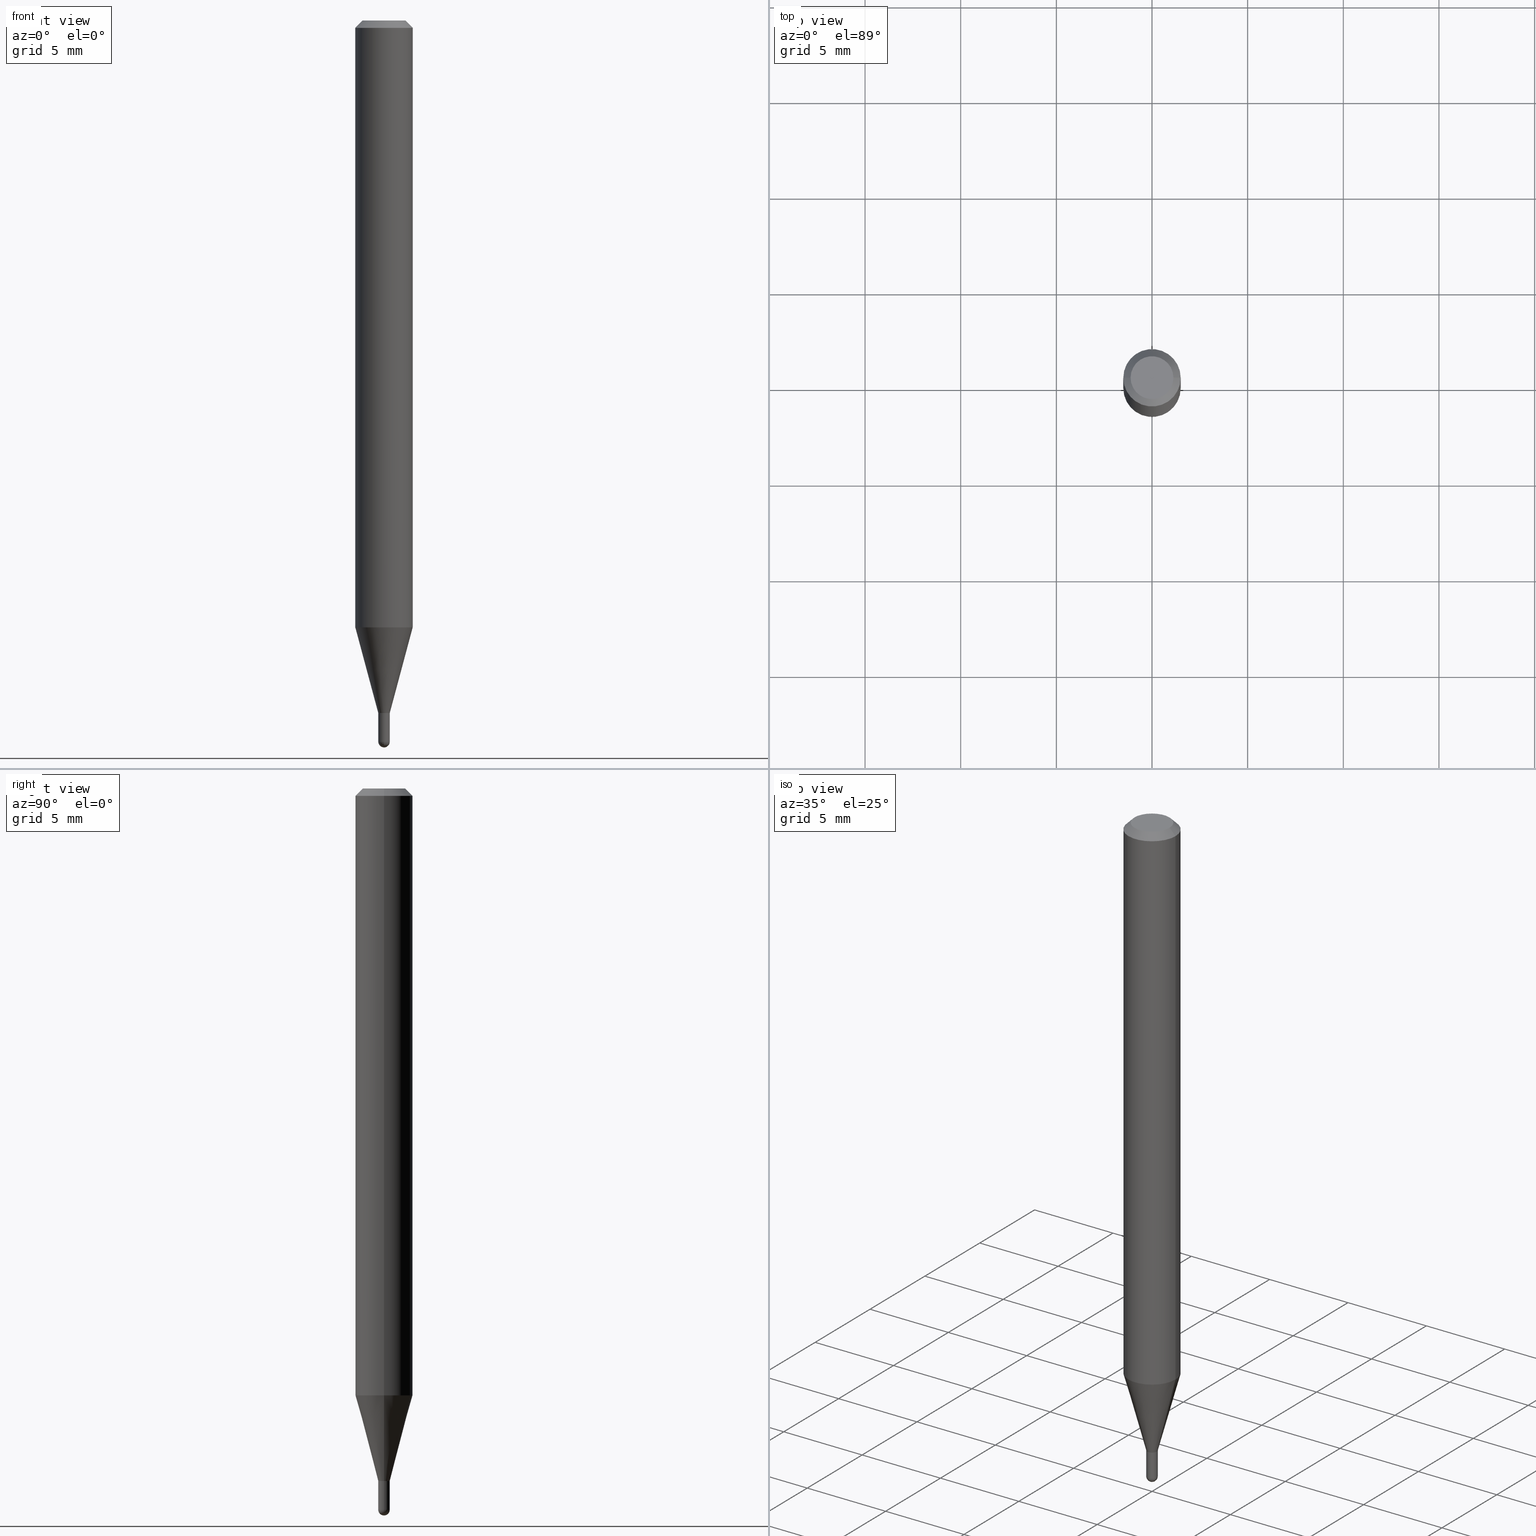
[diagram: canonical four-view strip — front | top / right | iso, engineering-drawing reading convention]
A machine part, canonical four-view strip (front | top / right | iso — engineering-drawing reading convention). The complete STEP part file that produces these views, byte-faithful:
ISO-10303-21;
HEADER;
FILE_DESCRIPTION (( 'STEP AP203' ),
    '1' );
FILE_NAME ('05035.STEP',
    '2024-03-08T21:02:24',
    ( '' ),
    ( '' ),
    'SwSTEP 2.0',
    'SolidWorks 2023',
    '' );
FILE_SCHEMA (( 'CONFIG_CONTROL_DESIGN' ));
ENDSEC;

DATA;
#1 = EDGE_CURVE ( 'NONE', #434, #441, #489, .T. ) ;
#2 = AXIS2_PLACEMENT_3D ( 'NONE', #339, #180, #499 ) ;
#3 = VERTEX_POINT ( 'NONE', #282 ) ;
#4 = CARTESIAN_POINT ( 'NONE',  ( 3.485282142575056435E-29, -4.976059204119250988E-15, -1.425199999999999800 ) ) ;
#5 = LOCAL_TIME ( 16, 2, 24.00000000000000000, #429 ) ;
#6 =( LENGTH_UNIT ( ) NAMED_UNIT ( * ) SI_UNIT ( $, .METRE. ) );
#7 = FACE_OUTER_BOUND ( 'NONE', #471, .T. ) ;
#8 = VERTEX_POINT ( 'NONE', #362 ) ;
#9 = CARTESIAN_POINT ( 'NONE',  ( 0.01180000000000000146, -5.058458163715949112E-15, -1.425199999999999800 ) ) ;
#10 = ORIENTED_EDGE ( 'NONE', *, *, #438, .T. ) ;
#11 = DIRECTION ( 'NONE',  ( -2.445468806185136597E-29, 3.491481338843145583E-15, 1.000000000000000000 ) ) ;
#12 = CARTESIAN_POINT ( 'NONE',  ( -0.04404999999999999888, 3.337856159934031674E-16, -8.050215734195352474E-17 ) ) ;
#13 = EDGE_CURVE ( 'NONE', #349, #150, #15, .T. ) ;
#14 = ORIENTED_EDGE ( 'NONE', *, *, #56, .T. ) ;
#15 = CIRCLE ( 'NONE', #141, 0.01180000000000000146 ) ;
#16 = CIRCLE ( 'NONE', #128, 0.01130000000000000102 ) ;
#17 = PERSON_AND_ORGANIZATION_ROLE ( 'creator' ) ;
#18 = CARTESIAN_POINT ( 'NONE',  ( 0.01180000000000000319, -8.239895959669796365E-17, 5.753888595439205651E-31 ) ) ;
#19 = DATE_AND_TIME ( #247, #458 ) ;
#20 = DIRECTION ( 'NONE',  ( 1.000000000000000000, -6.982962677686258033E-15, 0.000000000000000000 ) ) ;
#21 = CARTESIAN_POINT ( 'NONE',  ( 3.628800252799366100E-29, -5.183850834467873739E-15, -1.484299999999999731 ) ) ;
#22 = EDGE_LOOP ( 'NONE', ( #428, #190, #314, #418 ) ) ;
#23 = EDGE_LOOP ( 'NONE', ( #167, #341, #320, #401 ) ) ;
#24 = PERSON_AND_ORGANIZATION_ROLE ( 'creator' ) ;
#25 = CC_DESIGN_DATE_AND_TIME_ASSIGNMENT ( #19, #171, ( #155 ) ) ;
#26 = CARTESIAN_POINT ( 'NONE',  ( -0.01180000000000000146, -4.995388434862373344E-15, -1.425199999999999800 ) ) ;
#27 = EDGE_LOOP ( 'NONE', ( #255, #212, #355, #405, #38 ) ) ;
#28 = MECHANICAL_CONTEXT ( 'NONE', #43, 'mechanical' ) ;
#29 = VECTOR ( 'NONE', #423, 39.37007874015748143 ) ;
#30 = DIRECTION ( 'NONE',  ( -2.445468806185136877E-29, 3.491481338843145188E-15, 1.000000000000000000 ) ) ;
#31 = ORIENTED_EDGE ( 'NONE', *, *, #44, .F. ) ;
#32 = APPROVAL_ROLE ( '' ) ;
#33 = DIRECTION ( 'NONE',  ( 7.105427357600999492E-15, 1.000000000000000000, 0.000000000000000000 ) ) ;
#34 = ORIENTED_EDGE ( 'NONE', *, *, #322, .F. ) ;
#35 = ORIENTED_EDGE ( 'NONE', *, *, #79, .T. ) ;
#36 = EDGE_CURVE ( 'NONE', #104, #256, #119, .T. ) ;
#37 = DIRECTION ( 'NONE',  ( -2.445468806185136597E-29, 3.491481338843145583E-15, 1.000000000000000000 ) ) ;
#38 = ORIENTED_EDGE ( 'NONE', *, *, #13, .F. ) ;
#39 = AXIS2_PLACEMENT_3D ( 'NONE', #49, #286, #196 ) ;
#40 = APPROVAL_PERSON_ORGANIZATION ( #213, #404, #204 ) ;
#41 = CARTESIAN_POINT ( 'NONE',  ( 3.485282142575056995E-29, -4.976059204119251777E-15, -1.425200000000000244 ) ) ;
#42 = CARTESIAN_POINT ( 'NONE',  ( 8.239895959673279679E-17, 0.01179999999999502280, -1.425199999999999800 ) ) ;
#43 = APPLICATION_CONTEXT ( 'configuration controlled 3d designs of mechanical parts and assemblies' ) ;
#44 = EDGE_CURVE ( 'NONE', #150, #349, #200, .T. ) ;
#45 = DIRECTION ( 'NONE',  ( 2.445468806185136597E-29, -3.491481338843145583E-15, -1.000000000000000000 ) ) ;
#46 = CIRCLE ( 'NONE', #273, 0.01180000000000019922 ) ;
#47 = AXIS2_PLACEMENT_3D ( 'NONE', #113, #37, #272 ) ;
#48 = DIRECTION ( 'NONE',  ( -2.445468806185136597E-29, 3.491481338843145583E-15, 1.000000000000000000 ) ) ;
#49 = CARTESIAN_POINT ( 'NONE',  ( 3.668203209277724356E-31, -5.237222008264746748E-17, -0.01500000000000008098 ) ) ;
#50 = EDGE_CURVE ( 'NONE', #203, #72, #468, .T. ) ;
#51 = SPHERICAL_SURFACE ( 'NONE', #251, 0.01180000000000006738 ) ;
#52 = CYLINDRICAL_SURFACE ( 'NONE', #360, 0.01180000000000000319 ) ;
#53 = VECTOR ( 'NONE', #134, 39.37007874015748143 ) ;
#54 = CC_DESIGN_APPROVAL ( #231, ( #82 ) ) ;
#55 = CARTESIAN_POINT ( 'NONE',  ( 1.968655146103496235E-45, -2.810717800960375713E-31, -8.050215734195126909E-17 ) ) ;
#56 = EDGE_CURVE ( 'NONE', #145, #268, #500, .T. ) ;
#57 = APPLICATION_PROTOCOL_DEFINITION ( 'international standard', 'config_control_design', 1994, #460 ) ;
#58 = DIRECTION ( 'NONE',  ( -2.445468806185136597E-29, 3.491481338843145583E-15, 1.000000000000000000 ) ) ;
#59 = CARTESIAN_POINT ( 'NONE',  ( 0.01179999999999965278, -5.056712423046525241E-15, -1.424700000000000077 ) ) ;
#60 = CIRCLE ( 'NONE', #331, 0.01180000000000000319 ) ;
#61 =( GEOMETRIC_REPRESENTATION_CONTEXT ( 3 ) GLOBAL_UNCERTAINTY_ASSIGNED_CONTEXT ( ( #242 ) ) GLOBAL_UNIT_ASSIGNED_CONTEXT ( ( #110, #461, #342 ) ) REPRESENTATION_CONTEXT ( 'NONE', 'WORKASPACE' ) );
#62 = CIRCLE ( 'NONE', #288, 0.01180000000000006738 ) ;
#63 = DATE_TIME_ROLE ( 'creation_date' ) ;
#64 = DIRECTION ( 'NONE',  ( 1.000000000000000000, -6.982962677686265922E-15, 4.876176775795935793E-29 ) ) ;
#65 = FACE_OUTER_BOUND ( 'NONE', #395, .T. ) ;
#66 = EDGE_CURVE ( 'NONE', #3, #346, #250, .T. ) ;
#67 = CYLINDRICAL_SURFACE ( 'NONE', #2, 0.01179999999999992687 ) ;
#68 = ORIENTED_EDGE ( 'NONE', *, *, #313, .F. ) ;
#69 = PERSON_AND_ORGANIZATION ( #285, #142 ) ;
#70 = LINE ( 'NONE', #147, #220 ) ;
#71 = ORIENTED_EDGE ( 'NONE', *, *, #50, .F. ) ;
#72 = VERTEX_POINT ( 'NONE', #12 ) ;
#73 = LENGTH_MEASURE_WITH_UNIT ( LENGTH_MEASURE( 0.02539999999999999897 ), #6 );
#74 = DIRECTION ( 'NONE',  ( 1.000000000000000000, -6.982962677686265922E-15, 4.876176775795935793E-29 ) ) ;
#75 = VECTOR ( 'NONE', #269, 39.37007874015748143 ) ;
#76 = DIRECTION ( 'NONE',  ( -2.445468806185136597E-29, 3.491481338843145583E-15, 1.000000000000000000 ) ) ;
#77 = VERTEX_POINT ( 'NONE', #125 ) ;
#78 = ORIENTED_EDGE ( 'NONE', *, *, #36, .F. ) ;
#79 = EDGE_CURVE ( 'NONE', #8, #349, #168, .T. ) ;
#80 = ORIENTED_EDGE ( 'NONE', *, *, #438, .F. ) ;
#81 = DIRECTION ( 'NONE',  ( -2.445468806185136597E-29, 3.491481338843145583E-15, 1.000000000000000000 ) ) ;
#82 = PRODUCT_DEFINITION_FORMATION_WITH_SPECIFIED_SOURCE ( 'ANY', '', #318, .NOT_KNOWN. ) ;
#83 = ADVANCED_FACE ( 'NONE', ( #7 ), #292, .T. ) ;
#84 = ORIENTED_EDGE ( 'NONE', *, *, #50, .T. ) ;
#85 = DIRECTION ( 'NONE',  ( 1.000000000000000000, -6.982962677686265133E-15, 4.883557194083112340E-29 ) ) ;
#86 = CARTESIAN_POINT ( 'NONE',  ( 3.485282142575056995E-29, -4.976059204119251777E-15, -1.425200000000000244 ) ) ;
#87 = AXIS2_PLACEMENT_3D ( 'NONE', #300, #416, #210 ) ;
#88 = AXIS2_PLACEMENT_3D ( 'NONE', #475, #254, #211 ) ;
#89 = PLANE ( 'NONE',  #209 ) ;
#90 = EDGE_CURVE ( 'NONE', #185, #77, #207, .T. ) ;
#91 = DIRECTION ( 'NONE',  ( 1.000000000000000000, -6.982962677686297476E-15, 0.000000000000000000 ) ) ;
#92 = CARTESIAN_POINT ( 'NONE',  ( 0.01180000000000000319, -5.161631437278763522E-15, -1.484299999999999731 ) ) ;
#93 = DIRECTION ( 'NONE',  ( -2.445468806185136597E-29, 3.491481338843145583E-15, 1.000000000000000000 ) ) ;
#94 = CONICAL_SURFACE ( 'NONE', #392, 0.01130000000000000102, 0.7853981633969275844 ) ;
#95 = FACE_OUTER_BOUND ( 'NONE', #215, .T. ) ;
#96 = ADVANCED_FACE ( 'NONE', ( #325 ), #462, .T. ) ;
#97 = DIRECTION ( 'NONE',  ( -2.445468806185136597E-29, 3.491481338843145583E-15, 1.000000000000000000 ) ) ;
#98 = DIRECTION ( 'NONE',  ( -2.445468806185136877E-29, 3.491481338843145188E-15, 1.000000000000000000 ) ) ;
#99 = CALENDAR_DATE ( 2024, 8, 3 ) ;
#100 = PLANE ( 'NONE',  #177 ) ;
#101 = DIRECTION ( 'NONE',  ( -2.445468806185136597E-29, 3.491481338843145583E-15, 1.000000000000000000 ) ) ;
#102 = CALENDAR_DATE ( 2024, 8, 3 ) ;
#103 = DIRECTION ( 'NONE',  ( -2.445468806185136597E-29, 3.491481338843145583E-15, 1.000000000000000000 ) ) ;
#104 = VERTEX_POINT ( 'NONE', #378 ) ;
#105 = PERSON_AND_ORGANIZATION_ROLE ( 'design_owner' ) ;
#106 = DIRECTION ( 'NONE',  ( 1.000000000000000000, -6.982962677686264344E-15, 0.000000000000000000 ) ) ;
#107 = ORIENTED_EDGE ( 'NONE', *, *, #153, .T. ) ;
#108 = CARTESIAN_POINT ( 'NONE',  ( 0.000000000000000000, 0.000000000000000000, 0.000000000000000000 ) ) ;
#109 = EDGE_LOOP ( 'NONE', ( #71, #165, #505, #344 ) ) ;
#110 =( CONVERSION_BASED_UNIT ( 'INCH', #73 ) LENGTH_UNIT ( ) NAMED_UNIT ( #400 ) );
#111 = SPHERICAL_SURFACE ( 'NONE', #88, 0.01180000000000006738 ) ;
#112 = ORIENTED_EDGE ( 'NONE', *, *, #121, .F. ) ;
#113 = CARTESIAN_POINT ( 'NONE',  ( 3.484059408171963633E-29, -4.974313463449829484E-15, -1.424700000000000077 ) ) ;
#114 = CARTESIAN_POINT ( 'NONE',  ( 3.629809349020597767E-29, -5.182405751244879809E-15, -1.484299999999999731 ) ) ;
#115 = ADVANCED_FACE ( 'NONE', ( #487 ), #100, .F. ) ;
#116 = LINE ( 'NONE', #224, #451 ) ;
#117 = DIRECTION ( 'NONE',  ( -1.000000000000000000, 6.982962677686265922E-15, -4.876176775795935793E-29 ) ) ;
#118 = CC_DESIGN_PERSON_AND_ORGANIZATION_ASSIGNMENT ( #69, #169, ( #82 ) ) ;
#119 = CIRCLE ( 'NONE', #187, 0.01180000000000006738 ) ;
#120 = EDGE_LOOP ( 'NONE', ( #186, #509, #184, #402 ) ) ;
#121 = EDGE_CURVE ( 'NONE', #441, #434, #46, .T. ) ;
#122 = AXIS2_PLACEMENT_3D ( 'NONE', #108, #226, #261 ) ;
#123 = DIRECTION ( 'NONE',  ( -1.000000000000000000, 6.982962677686265922E-15, -4.876176775795935793E-29 ) ) ;
#124 = LINE ( 'NONE', #455, #354 ) ;
#125 = CARTESIAN_POINT ( 'NONE',  ( -0.01179999999999965278, -4.890469420630140585E-15, -1.424700000000000077 ) ) ;
#126 = ADVANCED_FACE ( 'NONE', ( #253 ), #52, .T. ) ;
#127 = CIRCLE ( 'NONE', #432, 0.05904999999999999832 ) ;
#128 = AXIS2_PLACEMENT_3D ( 'NONE', #435, #11, #327 ) ;
#129 = CARTESIAN_POINT ( 'NONE',  ( 3.485282142575056435E-29, -4.976059204119250988E-15, -1.425199999999999800 ) ) ;
#130 = APPROVAL_STATUS ( 'not_yet_approved' ) ;
#131 = CYLINDRICAL_SURFACE ( 'NONE', #422, 0.01179999999999992687 ) ;
#132 = ORIENTED_EDGE ( 'NONE', *, *, #66, .T. ) ;
#133 = DIRECTION ( 'NONE',  ( 1.000000000000000000, 0.000000000000000000, 0.000000000000000000 ) ) ;
#134 = DIRECTION ( 'NONE',  ( -2.445468806185136877E-29, 3.491481338843145188E-15, 1.000000000000000000 ) ) ;
#135 = CARTESIAN_POINT ( 'NONE',  ( 0.000000000000000000, 0.000000000000000000, 0.000000000000000000 ) ) ;
#136 = CALENDAR_DATE ( 2024, 8, 3 ) ;
#137 = CARTESIAN_POINT ( 'NONE',  ( 0.000000000000000000, 0.000000000000000000, 0.000000000000000000 ) ) ;
#138 = EDGE_CURVE ( 'NONE', #8, #256, #510, .T. ) ;
#139 = CARTESIAN_POINT ( 'NONE',  ( 3.485282142575056435E-29, -4.976059204119250988E-15, -1.425199999999999800 ) ) ;
#140 = VERTEX_POINT ( 'NONE', #324 ) ;
#141 = AXIS2_PLACEMENT_3D ( 'NONE', #4, #188, #162 ) ;
#142 = ORGANIZATION ( 'UNSPECIFIED', 'UNSPECIFIED', '' ) ;
#143 = DATE_AND_TIME ( #426, #274 ) ;
#144 = CARTESIAN_POINT ( 'NONE',  ( 0.05904999999999999832, -4.647161662000215063E-16, -0.01500000000000008098 ) ) ;
#145 = VERTEX_POINT ( 'NONE', #194 ) ;
#146 = SECURITY_CLASSIFICATION_LEVEL ( 'unclassified' ) ;
#147 = CARTESIAN_POINT ( 'NONE',  ( -0.05904999999999999832, 4.195754854663391478E-16, -2.904631170795521892E-30 ) ) ;
#148 = ORIENTED_EDGE ( 'NONE', *, *, #313, .T. ) ;
#149 = CC_DESIGN_PERSON_AND_ORGANIZATION_ASSIGNMENT ( #183, #17, ( #82 ) ) ;
#150 = VERTEX_POINT ( 'NONE', #9 ) ;
#151 = AXIS2_PLACEMENT_3D ( 'NONE', #414, #58, #494 ) ;
#152 = AXIS2_PLACEMENT_3D ( 'NONE', #277, #93, #449 ) ;
#153 = EDGE_CURVE ( 'NONE', #140, #8, #60, .T. ) ;
#154 = CARTESIAN_POINT ( 'NONE',  ( 0.01179999999999992687, -8.239895959669743364E-17, 5.753888595439167991E-31 ) ) ;
#155 = SECURITY_CLASSIFICATION ( '', '', #146 ) ;
#156 = EDGE_LOOP ( 'NONE', ( #10, #84 ) ) ;
#157 = FACE_OUTER_BOUND ( 'NONE', #375, .T. ) ;
#158 = ADVANCED_FACE ( 'NONE', ( #236 ), #419, .T. ) ;
#159 = CARTESIAN_POINT ( 'NONE',  ( -0.01180000000000019922, -4.416506576626797122E-15, -1.425199999999999800 ) ) ;
#160 = FACE_OUTER_BOUND ( 'NONE', #275, .T. ) ;
#161 = CARTESIAN_POINT ( 'NONE',  ( 0.01180000000000019922, -5.058458163715949900E-15, -1.425199999999999800 ) ) ;
#162 = DIRECTION ( 'NONE',  ( 1.000000000000000000, -6.982962677686298265E-15, 0.000000000000000000 ) ) ;
#163 = CLOSED_SHELL ( 'NONE', ( #257, #492, #158, #448, #338, #276, #96, #430, #504, #115, #181, #245 ) ) ;
#164 = AXIS2_PLACEMENT_3D ( 'NONE', #218, #391, #495 ) ;
#165 = ORIENTED_EDGE ( 'NONE', *, *, #322, .T. ) ;
#166 = EDGE_CURVE ( 'NONE', #434, #3, #124, .T. ) ;
#167 = ORIENTED_EDGE ( 'NONE', *, *, #121, .T. ) ;
#168 = LINE ( 'NONE', #296, #53 ) ;
#169 = PERSON_AND_ORGANIZATION_ROLE ( 'design_supplier' ) ;
#170 = CARTESIAN_POINT ( 'NONE',  ( 0.04404999999999999888, -3.798447818264463530E-16, -8.050215734194887786E-17 ) ) ;
#171 = DATE_TIME_ROLE ( 'classification_date' ) ;
#172 = CARTESIAN_POINT ( 'NONE',  ( 3.485282142575056435E-29, -4.976059204119250988E-15, -1.425199999999999800 ) ) ;
#173 = LINE ( 'NONE', #387, #233 ) ;
#174 = ORIENTED_EDGE ( 'NONE', *, *, #385, .T. ) ;
#175 = CARTESIAN_POINT ( 'NONE',  ( -0.01130000000000000102, -4.893118647804250998E-15, -1.425200000000000244 ) ) ;
#176 = VERTEX_POINT ( 'NONE', #305 ) ;
#177 = AXIS2_PLACEMENT_3D ( 'NONE', #248, #421, #382 ) ;
#178 = CIRCLE ( 'NONE', #240, 0.01130000000000000102 ) ;
#179 = APPROVAL_STATUS ( 'not_yet_approved' ) ;
#180 = DIRECTION ( 'NONE',  ( -2.445468806185136597E-29, 3.491481338843145583E-15, 1.000000000000000000 ) ) ;
#181 = ADVANCED_FACE ( 'NONE', ( #259 ), #94, .T. ) ;
#182 = ORIENTED_EDGE ( 'NONE', *, *, #478, .F. ) ;
#183 = PERSON_AND_ORGANIZATION ( #285, #142 ) ;
#184 = ORIENTED_EDGE ( 'NONE', *, *, #473, .T. ) ;
#185 = VERTEX_POINT ( 'NONE', #59 ) ;
#186 = ORIENTED_EDGE ( 'NONE', *, *, #1, .F. ) ;
#187 = AXIS2_PLACEMENT_3D ( 'NONE', #485, #334, #488 ) ;
#188 = DIRECTION ( 'NONE',  ( -2.445468806185136597E-29, 3.491481338843145583E-15, 1.000000000000000000 ) ) ;
#189 = ORIENTED_EDGE ( 'NONE', *, *, #138, .F. ) ;
#190 = ORIENTED_EDGE ( 'NONE', *, *, #412, .T. ) ;
#191 = DIRECTION ( 'NONE',  ( 1.000000000000000000, -6.982962677686264344E-15, 0.000000000000000000 ) ) ;
#192 = AXIS2_PLACEMENT_3D ( 'NONE', #436, #81, #229 ) ;
#193 = DIRECTION ( 'NONE',  ( -2.445468806185136597E-29, 3.491481338843145583E-15, 1.000000000000000000 ) ) ;
#194 = CARTESIAN_POINT ( 'NONE',  ( -0.05904999999999999832, -1.786797363285172040E-15, -0.01500000000000008098 ) ) ;
#195 = DIRECTION ( 'NONE',  ( -2.445468806185136597E-29, 3.491481338843145583E-15, 1.000000000000000000 ) ) ;
#196 = DIRECTION ( 'NONE',  ( -1.000000000000000000, 6.982962677686266711E-15, 0.000000000000000000 ) ) ;
#197 = EDGE_CURVE ( 'NONE', #447, #150, #206, .T. ) ;
#198 = LINE ( 'NONE', #453, #280 ) ;
#199 = CARTESIAN_POINT ( 'NONE',  ( 0.000000000000000000, 0.000000000000000000, 0.000000000000000000 ) ) ;
#200 = CIRCLE ( 'NONE', #151, 0.01180000000000000146 ) ;
#201 = DIRECTION ( 'NONE',  ( 1.000000000000000000, -6.982962677686297476E-15, 0.000000000000000000 ) ) ;
#202 = DIRECTION ( 'NONE',  ( 1.000000000000000000, -6.982962677686265922E-15, 4.888540261209747396E-29 ) ) ;
#203 = VERTEX_POINT ( 'NONE', #170 ) ;
#204 = APPROVAL_ROLE ( '' ) ;
#205 = CARTESIAN_POINT ( 'NONE',  ( 3.668203209277724356E-31, -5.237222008264746748E-17, -0.01500000000000008098 ) ) ;
#206 = LINE ( 'NONE', #18, #315 ) ;
#207 = CIRCLE ( 'NONE', #411, 0.01179999999999965278 ) ;
#208 = EDGE_CURVE ( 'NONE', #434, #77, #427, .T. ) ;
#209 = AXIS2_PLACEMENT_3D ( 'NONE', #367, #323, #123 ) ;
#210 = DIRECTION ( 'NONE',  ( 1.000000000000000000, -6.982962677686266711E-15, 4.876176775795936353E-29 ) ) ;
#211 = DIRECTION ( 'NONE',  ( -6.982962677686265133E-15, -1.000000000000000000, 0.000000000000000000 ) ) ;
#212 = ORIENTED_EDGE ( 'NONE', *, *, #138, .T. ) ;
#213 = PERSON_AND_ORGANIZATION ( #285, #142 ) ;
#214 = DIRECTION ( 'NONE',  ( 1.000000000000000000, -6.982962677686265133E-15, 0.000000000000000000 ) ) ;
#215 = EDGE_LOOP ( 'NONE', ( #456, #223, #340, #298 ) ) ;
#216 = COORDINATED_UNIVERSAL_TIME_OFFSET ( 5, 0, .BEHIND. ) ;
#217 = EDGE_CURVE ( 'NONE', #3, #145, #70, .T. ) ;
#218 = CARTESIAN_POINT ( 'NONE',  ( 3.668203209277724356E-31, -5.237222008264746748E-17, -0.01500000000000008098 ) ) ;
#219 = EDGE_LOOP ( 'NONE', ( #508, #132, #312, #443 ) ) ;
#220 = VECTOR ( 'NONE', #30, 39.37007874015748143 ) ;
#221 = APPROVAL_PERSON_ORGANIZATION ( #347, #454, #336 ) ;
#222 = CARTESIAN_POINT ( 'NONE',  ( 3.485282142575056995E-29, -4.976059204119251777E-15, -1.425200000000000244 ) ) ;
#223 = ORIENTED_EDGE ( 'NONE', *, *, #217, .T. ) ;
#224 = CARTESIAN_POINT ( 'NONE',  ( 0.01130000000000000102, -5.054966682377106893E-15, -1.425200000000000244 ) ) ;
#225 = APPROVAL_DATE_TIME ( #506, #454 ) ;
#226 = DIRECTION ( 'NONE',  ( -2.445468806185136597E-29, 3.491481338843145583E-15, 1.000000000000000000 ) ) ;
#227 = EDGE_CURVE ( 'NONE', #346, #3, #127, .T. ) ;
#228 = CC_DESIGN_APPROVAL ( #404, ( #328 ) ) ;
#229 = DIRECTION ( 'NONE',  ( 1.000000000000000000, -6.982962677686297476E-15, 0.000000000000000000 ) ) ;
#230 = LOCAL_TIME ( 16, 2, 24.00000000000000000, #497 ) ;
#231 = APPROVAL ( #377, 'UNSPECIFIED' ) ;
#232 = AXIS2_PLACEMENT_3D ( 'NONE', #129, #193, #191 ) ;
#233 = VECTOR ( 'NONE', #332, 39.37007874015748143 ) ;
#234 = ORIENTED_EDGE ( 'NONE', *, *, #66, .F. ) ;
#235 = EDGE_CURVE ( 'NONE', #268, #145, #403, .T. ) ;
#236 = FACE_OUTER_BOUND ( 'NONE', #109, .T. ) ;
#237 = EDGE_LOOP ( 'NONE', ( #263, #410 ) ) ;
#238 = DIRECTION ( 'NONE',  ( -2.445468806185136877E-29, 3.491481338843145188E-15, 1.000000000000000000 ) ) ;
#239 = EDGE_LOOP ( 'NONE', ( #496, #112, #174, #397 ) ) ;
#240 = AXIS2_PLACEMENT_3D ( 'NONE', #41, #373, #452 ) ;
#241 = DIRECTION ( 'NONE',  ( 1.000000000000000000, -6.982962677686266711E-15, 0.000000000000000000 ) ) ;
#242 = UNCERTAINTY_MEASURE_WITH_UNIT (LENGTH_MEASURE( 1.000000000000000082E-05 ), #110, 'distance_accuracy_value', 'NONE');
#243 = ORIENTED_EDGE ( 'NONE', *, *, #486, .T. ) ;
#244 = DIRECTION ( 'NONE',  ( -2.445468806185136597E-29, 3.491481338843145583E-15, 1.000000000000000000 ) ) ;
#245 = ADVANCED_FACE ( 'NONE', ( #491 ), #131, .F. ) ;
#246 = FACE_OUTER_BOUND ( 'NONE', #23, .T. ) ;
#247 = CALENDAR_DATE ( 2024, 8, 3 ) ;
#248 = CARTESIAN_POINT ( 'NONE',  ( 3.485282142575056435E-29, -4.976059204119250988E-15, -1.425199999999999800 ) ) ;
#249 = CARTESIAN_POINT ( 'NONE',  ( -8.239895959666188559E-17, -0.01180000000000521951, -1.484299999999999731 ) ) ;
#250 = CIRCLE ( 'NONE', #450, 0.05904999999999999832 ) ;
#251 = AXIS2_PLACEMENT_3D ( 'NONE', #446, #85, #444 ) ;
#252 = ORIENTED_EDGE ( 'NONE', *, *, #166, .F. ) ;
#253 = FACE_OUTER_BOUND ( 'NONE', #27, .T. ) ;
#254 = DIRECTION ( 'NONE',  ( 1.000000000000000000, -6.982962677686265133E-15, 4.883557194083112340E-29 ) ) ;
#255 = ORIENTED_EDGE ( 'NONE', *, *, #79, .F. ) ;
#256 = VERTEX_POINT ( 'NONE', #249 ) ;
#257 = ADVANCED_FACE ( 'NONE', ( #343 ), #67, .F. ) ;
#258 = PERSON_AND_ORGANIZATION ( #285, #142 ) ;
#259 = FACE_OUTER_BOUND ( 'NONE', #22, .T. ) ;
#260 = ORIENTED_EDGE ( 'NONE', *, *, #478, .T. ) ;
#261 = DIRECTION ( 'NONE',  ( 1.000000000000000000, -6.982962677686266711E-15, 4.876176775795936353E-29 ) ) ;
#262 = DIRECTION ( 'NONE',  ( -0.2588190451025285110, 5.211531920934594429E-15, 0.9659258262890662028 ) ) ;
#263 = ORIENTED_EDGE ( 'NONE', *, *, #44, .T. ) ;
#264 = AXIS2_PLACEMENT_3D ( 'NONE', #205, #244, #241 ) ;
#265 = CIRCLE ( 'NONE', #192, 0.01180000000000000319 ) ;
#266 = SHAPE_DEFINITION_REPRESENTATION ( #437, #439 ) ;
#267 = DIRECTION ( 'NONE',  ( -2.445468806185136597E-29, 3.491481338843145583E-15, 1.000000000000000000 ) ) ;
#268 = VERTEX_POINT ( 'NONE', #144 ) ;
#269 = DIRECTION ( 'NONE',  ( -2.445468806185136877E-29, 3.491481338843145188E-15, 1.000000000000000000 ) ) ;
#270 = FACE_OUTER_BOUND ( 'NONE', #237, .T. ) ;
#271 = EDGE_CURVE ( 'NONE', #72, #145, #431, .T. ) ;
#272 = DIRECTION ( 'NONE',  ( 1.000000000000000000, -6.982962677686258033E-15, 0.000000000000000000 ) ) ;
#273 = AXIS2_PLACEMENT_3D ( 'NONE', #172, #337, #498 ) ;
#274 = LOCAL_TIME ( 16, 2, 24.00000000000000000, #216 ) ;
#275 = EDGE_LOOP ( 'NONE', ( #260, #368, #388, #384 ) ) ;
#276 = ADVANCED_FACE ( 'NONE', ( #307 ), #380, .T. ) ;
#277 = CARTESIAN_POINT ( 'NONE',  ( 3.629809349020597767E-29, -5.182405751244879809E-15, -1.484299999999999731 ) ) ;
#278 = CARTESIAN_POINT ( 'NONE',  ( -0.01130000000000000102, -4.895767874978360621E-15, -1.425200000000000244 ) ) ;
#279 = AXIS2_PLACEMENT_3D ( 'NONE', #114, #267, #201 ) ;
#280 = VECTOR ( 'NONE', #238, 39.37007874015748143 ) ;
#281 = FACE_OUTER_BOUND ( 'NONE', #156, .T. ) ;
#282 = CARTESIAN_POINT ( 'NONE',  ( -0.05904999999999999832, -3.940797991954035310E-15, -1.248860599342376920 ) ) ;
#283 = CIRCLE ( 'NONE', #47, 0.01179999999999965278 ) ;
#284 = EDGE_CURVE ( 'NONE', #441, #346, #503, .T. ) ;
#285 = PERSON ( 'UNSPECIFIED', 'UNSPECIFIED', 'UNSPECIFIED', ('UNSPECIFIED'), ('UNSPECIFIED'), ('UNSPECIFIED') ) ;
#286 = DIRECTION ( 'NONE',  ( 2.445468806185136597E-29, -3.491481338843145583E-15, -1.000000000000000000 ) ) ;
#287 = DESIGN_CONTEXT ( 'detailed design', #460, 'design' ) ;
#288 = AXIS2_PLACEMENT_3D ( 'NONE', #21, #472, #33 ) ;
#289 = MANIFOLD_SOLID_BREP ( 'Body-Move/Copy2[2]', #163 ) ;
#290 = CC_DESIGN_PERSON_AND_ORGANIZATION_ASSIGNMENT ( #295, #390, ( #155 ) ) ;
#291 = PERSON_AND_ORGANIZATION ( #285, #142 ) ;
#292 = CYLINDRICAL_SURFACE ( 'NONE', #308, 0.01180000000000000319 ) ;
#293 = DIRECTION ( 'NONE',  ( -2.445468806185136877E-29, 3.491481338843145188E-15, 1.000000000000000000 ) ) ;
#294 = CARTESIAN_POINT ( 'NONE',  ( 3.629809349020597767E-29, -5.182405751244879809E-15, -1.484299999999999731 ) ) ;
#295 = PERSON_AND_ORGANIZATION ( #285, #142 ) ;
#296 = CARTESIAN_POINT ( 'NONE',  ( -0.01180000000000000319, 8.384404281969184463E-17, -5.804343406500789892E-31 ) ) ;
#297 = DIRECTION ( 'NONE',  ( -2.445468806185136597E-29, 3.491481338843145583E-15, 1.000000000000000000 ) ) ;
#298 = ORIENTED_EDGE ( 'NONE', *, *, #512, .F. ) ;
#299 = COORDINATED_UNIVERSAL_TIME_OFFSET ( 5, 0, .BEHIND. ) ;
#300 = CARTESIAN_POINT ( 'NONE',  ( 0.000000000000000000, 0.000000000000000000, 0.000000000000000000 ) ) ;
#301 = DIRECTION ( 'NONE',  ( -2.445468806185136597E-29, 3.491481338843145583E-15, 1.000000000000000000 ) ) ;
#302 = CC_DESIGN_PERSON_AND_ORGANIZATION_ASSIGNMENT ( #291, #24, ( #328 ) ) ;
#303 = AXIS2_PLACEMENT_3D ( 'NONE', #139, #301, #106 ) ;
#304 = ORIENTED_EDGE ( 'NONE', *, *, #271, .T. ) ;
#305 = CARTESIAN_POINT ( 'NONE',  ( 0.01130000000000000102, -5.054966682377106893E-15, -1.425200000000000244 ) ) ;
#306 = DIRECTION ( 'NONE',  ( 0.000000000000000000, 0.000000000000000000, 1.000000000000000000 ) ) ;
#307 = FACE_OUTER_BOUND ( 'NONE', #393, .T. ) ;
#308 = AXIS2_PLACEMENT_3D ( 'NONE', #137, #330, #64 ) ;
#309 = AXIS2_PLACEMENT_3D ( 'NONE', #86, #48, #319 ) ;
#310 = DIRECTION ( 'NONE',  ( 0.7071067811861793118, -2.468850131078399925E-15, 0.7071067811869157227 ) ) ;
#311 = ADVANCED_FACE ( 'NONE', ( #65 ), #111, .T. ) ;
#312 = ORIENTED_EDGE ( 'NONE', *, *, #512, .T. ) ;
#313 = EDGE_CURVE ( 'NONE', #104, #140, #62, .T. ) ;
#314 = ORIENTED_EDGE ( 'NONE', *, *, #374, .T. ) ;
#315 = VECTOR ( 'NONE', #98, 39.37007874015748143 ) ;
#316 = AXIS2_PLACEMENT_3D ( 'NONE', #363, #45, #361 ) ;
#317 = ORIENTED_EDGE ( 'NONE', *, *, #36, .T. ) ;
#318 = PRODUCT ( '05035', '05035', '', ( #28 ) ) ;
#319 = DIRECTION ( 'NONE',  ( 1.000000000000000000, -6.982962677686254878E-15, 0.000000000000000000 ) ) ;
#320 = ORIENTED_EDGE ( 'NONE', *, *, #227, .F. ) ;
#321 = VECTOR ( 'NONE', #408, 39.37007874015748143 ) ;
#322 = EDGE_CURVE ( 'NONE', #203, #268, #173, .T. ) ;
#323 = DIRECTION ( 'NONE',  ( 2.438088387897960049E-29, -3.491481338843145188E-15, -1.000000000000000000 ) ) ;
#324 = CARTESIAN_POINT ( 'NONE',  ( 8.384404281972835410E-17, 0.01179999999999485107, -1.484299999999999731 ) ) ;
#325 = FACE_OUTER_BOUND ( 'NONE', #219, .T. ) ;
#326 = LINE ( 'NONE', #278, #321 ) ;
#327 = DIRECTION ( 'NONE',  ( 1.000000000000000000, -6.982962677686254878E-15, 0.000000000000000000 ) ) ;
#328 = PRODUCT_DEFINITION ( 'UNKNOWN', '', #82, #287 ) ;
#329 = ORIENTED_EDGE ( 'NONE', *, *, #486, .F. ) ;
#330 = DIRECTION ( 'NONE',  ( -2.445468806185136597E-29, 3.491481338843145583E-15, 1.000000000000000000 ) ) ;
#331 = AXIS2_PLACEMENT_3D ( 'NONE', #294, #364, #91 ) ;
#332 = DIRECTION ( 'NONE',  ( 0.7071067811865475727, -7.319954787623256045E-15, -0.7071067811865474617 ) ) ;
#333 = CIRCLE ( 'NONE', #152, 0.01180000000000000319 ) ;
#334 = DIRECTION ( 'NONE',  ( -1.000000000000000000, 6.982962677686265922E-15, -4.883557194083112340E-29 ) ) ;
#335 = CARTESIAN_POINT ( 'NONE',  ( -0.01179999999999992687, 8.384404281969130229E-17, -5.804343406500752232E-31 ) ) ;
#336 = APPROVAL_ROLE ( '' ) ;
#337 = DIRECTION ( 'NONE',  ( -2.445468806185136597E-29, 3.491481338843145583E-15, 1.000000000000000000 ) ) ;
#338 = ADVANCED_FACE ( 'NONE', ( #246 ), #413, .T. ) ;
#339 = CARTESIAN_POINT ( 'NONE',  ( 0.000000000000000000, 0.000000000000000000, 0.000000000000000000 ) ) ;
#340 = ORIENTED_EDGE ( 'NONE', *, *, #235, .F. ) ;
#341 = ORIENTED_EDGE ( 'NONE', *, *, #166, .T. ) ;
#342 =( NAMED_UNIT ( * ) SI_UNIT ( $, .STERADIAN. ) SOLID_ANGLE_UNIT ( ) );
#343 = FACE_OUTER_BOUND ( 'NONE', #120, .T. ) ;
#344 = ORIENTED_EDGE ( 'NONE', *, *, #271, .F. ) ;
#345 = VECTOR ( 'NONE', #425, 39.37007874015748143 ) ;
#346 = VERTEX_POINT ( 'NONE', #470 ) ;
#347 = PERSON_AND_ORGANIZATION ( #285, #142 ) ;
#348 = CARTESIAN_POINT ( 'NONE',  ( -0.05904999999999999832, 3.599717260347265590E-16, -0.01500000000000008098 ) ) ;
#349 = VERTEX_POINT ( 'NONE', #26 ) ;
#350 = CARTESIAN_POINT ( 'NONE',  ( 0.000000000000000000, 0.000000000000000000, 0.000000000000000000 ) ) ;
#351 = ORIENTED_EDGE ( 'NONE', *, *, #197, .F. ) ;
#352 = DIRECTION ( 'NONE',  ( -2.445468806185136597E-29, 3.491481338843145583E-15, 1.000000000000000000 ) ) ;
#353 = CC_DESIGN_APPROVAL ( #454, ( #155 ) ) ;
#354 = VECTOR ( 'NONE', #262, 39.37007874015748143 ) ;
#355 = ORIENTED_EDGE ( 'NONE', *, *, #398, .T. ) ;
#356 = AXIS2_PLACEMENT_3D ( 'NONE', #350, #306, #133 ) ;
#357 = VERTEX_POINT ( 'NONE', #175 ) ;
#358 = FACE_OUTER_BOUND ( 'NONE', #476, .T. ) ;
#359 = CC_DESIGN_DATE_AND_TIME_ASSIGNMENT ( #501, #63, ( #328 ) ) ;
#360 = AXIS2_PLACEMENT_3D ( 'NONE', #199, #352, #74 ) ;
#361 = DIRECTION ( 'NONE',  ( -1.000000000000000000, 6.982962677686266711E-15, 0.000000000000000000 ) ) ;
#362 = CARTESIAN_POINT ( 'NONE',  ( -0.01180000000000000319, -4.995388434862373344E-15, -1.484299999999999731 ) ) ;
#363 = CARTESIAN_POINT ( 'NONE',  ( 3.668203209277724356E-31, -5.237222008264746748E-17, -0.01500000000000008098 ) ) ;
#364 = DIRECTION ( 'NONE',  ( -2.445468806185136597E-29, 3.491481338843145583E-15, 1.000000000000000000 ) ) ;
#365 = ADVANCED_FACE ( 'NONE', ( #270 ), #445, .F. ) ;
#366 = DIRECTION ( 'NONE',  ( 1.000000000000000000, -6.982962677686265922E-15, 4.888540261209747396E-29 ) ) ;
#367 = CARTESIAN_POINT ( 'NONE',  ( 3.075995059520799729E-16, 0.04404999999999999888, -1.940508316470162065E-16 ) ) ;
#368 = ORIENTED_EDGE ( 'NONE', *, *, #424, .T. ) ;
#369 = CC_DESIGN_SECURITY_CLASSIFICATION ( #155, ( #82 ) ) ;
#370 = CLOSED_SHELL ( 'NONE', ( #83, #409, #365, #311, #126 ) ) ;
#371 = ORIENTED_EDGE ( 'NONE', *, *, #153, .F. ) ;
#372 = CARTESIAN_POINT ( 'NONE',  ( 3.054049638965456516E-29, -4.360373477420374803E-15, -1.248860599342376920 ) ) ;
#373 = DIRECTION ( 'NONE',  ( -2.445468806185136597E-29, 3.491481338843145583E-15, 1.000000000000000000 ) ) ;
#374 = EDGE_CURVE ( 'NONE', #176, #185, #116, .T. ) ;
#375 = EDGE_LOOP ( 'NONE', ( #34, #80, #304, #14 ) ) ;
#376 = DIRECTION ( 'NONE',  ( 1.000000000000000000, -6.982962677686265133E-15, 0.000000000000000000 ) ) ;
#377 = APPROVAL_STATUS ( 'not_yet_approved' ) ;
#378 = CARTESIAN_POINT ( 'NONE',  ( 3.657152236601735168E-29, -5.225772855877719767E-15, -1.496099999999999985 ) ) ;
#379 = DIRECTION ( 'NONE',  ( 1.000000000000000000, -6.982962677686254878E-15, 0.000000000000000000 ) ) ;
#380 = CONICAL_SURFACE ( 'NONE', #433, 0.01180000000000019922, 0.2617993877991574569 ) ;
#381 = PERSON_AND_ORGANIZATION ( #285, #142 ) ;
#382 = DIRECTION ( 'NONE',  ( 1.000000000000000000, -6.982962677686265922E-15, 4.876176775795935793E-29 ) ) ;
#383 = DIRECTION ( 'NONE',  ( 1.000000000000000000, -6.982962677686266711E-15, 4.876176775795935232E-29 ) ) ;
#384 = ORIENTED_EDGE ( 'NONE', *, *, #374, .F. ) ;
#385 = EDGE_CURVE ( 'NONE', #441, #185, #440, .T. ) ;
#386 = DATE_AND_TIME ( #99, #502 ) ;
#387 = CARTESIAN_POINT ( 'NONE',  ( 0.05904999999999999832, -4.574846268510564405E-16, -0.01500000000000008098 ) ) ;
#388 = ORIENTED_EDGE ( 'NONE', *, *, #90, .F. ) ;
#389 = ORIENTED_EDGE ( 'NONE', *, *, #1, .T. ) ;
#390 = PERSON_AND_ORGANIZATION_ROLE ( 'classification_officer' ) ;
#391 = DIRECTION ( 'NONE',  ( -2.445468806185136597E-29, 3.491481338843145583E-15, 1.000000000000000000 ) ) ;
#392 = AXIS2_PLACEMENT_3D ( 'NONE', #222, #297, #379 ) ;
#393 = EDGE_LOOP ( 'NONE', ( #252, #389, #482, #234 ) ) ;
#394 = APPROVAL_PERSON_ORGANIZATION ( #258, #231, #32 ) ;
#395 = EDGE_LOOP ( 'NONE', ( #68, #317, #189, #371 ) ) ;
#396 = DIRECTION ( 'NONE',  ( 2.438088387897960049E-29, -3.491481338843145188E-15, -1.000000000000000000 ) ) ;
#397 = ORIENTED_EDGE ( 'NONE', *, *, #90, .T. ) ;
#398 = EDGE_CURVE ( 'NONE', #256, #447, #265, .T. ) ;
#399 = ORIENTED_EDGE ( 'NONE', *, *, #398, .F. ) ;
#400 = DIMENSIONAL_EXPONENTS ( 1.000000000000000000, 0.000000000000000000, 0.000000000000000000, 0.000000000000000000, 0.000000000000000000, 0.000000000000000000, 0.000000000000000000 ) ;
#401 = ORIENTED_EDGE ( 'NONE', *, *, #284, .F. ) ;
#402 = ORIENTED_EDGE ( 'NONE', *, *, #385, .F. ) ;
#403 = CIRCLE ( 'NONE', #164, 0.05904999999999999832 ) ;
#404 = APPROVAL ( #130, 'UNSPECIFIED' ) ;
#405 = ORIENTED_EDGE ( 'NONE', *, *, #197, .T. ) ;
#406 = EDGE_LOOP ( 'NONE', ( #182, #459 ) ) ;
#407 = AXIS2_PLACEMENT_3D ( 'NONE', #483, #195, #366 ) ;
#408 = DIRECTION ( 'NONE',  ( -0.7071067811861793118, 7.493145998869024141E-15, 0.7071067811869157227 ) ) ;
#409 = ADVANCED_FACE ( 'NONE', ( #358 ), #51, .T. ) ;
#410 = ORIENTED_EDGE ( 'NONE', *, *, #13, .T. ) ;
#411 = AXIS2_PLACEMENT_3D ( 'NONE', #465, #490, #20 ) ;
#412 = EDGE_CURVE ( 'NONE', #357, #176, #178, .T. ) ;
#413 = CONICAL_SURFACE ( 'NONE', #303, 0.01180000000000019922, 0.2617993877991574569 ) ;
#414 = CARTESIAN_POINT ( 'NONE',  ( 3.485282142575056435E-29, -4.976059204119250988E-15, -1.425199999999999800 ) ) ;
#415 = DIRECTION ( 'NONE',  ( -2.445468806185136597E-29, 3.491481338843145583E-15, 1.000000000000000000 ) ) ;
#416 = DIRECTION ( 'NONE',  ( -2.445468806185136597E-29, 3.491481338843145583E-15, 1.000000000000000000 ) ) ;
#417 = CARTESIAN_POINT ( 'NONE',  ( 3.485282142575056435E-29, -4.976059204119250988E-15, -1.425199999999999800 ) ) ;
#418 = ORIENTED_EDGE ( 'NONE', *, *, #473, .F. ) ;
#419 = CONICAL_SURFACE ( 'NONE', #39, 0.05904999999999999832, 0.7853981633974483900 ) ;
#420 = COORDINATED_UNIVERSAL_TIME_OFFSET ( 5, 0, .BEHIND. ) ;
#421 = DIRECTION ( 'NONE',  ( -2.438088387897960049E-29, 3.491481338843145188E-15, 1.000000000000000000 ) ) ;
#422 = AXIS2_PLACEMENT_3D ( 'NONE', #135, #101, #383 ) ;
#423 = DIRECTION ( 'NONE',  ( 0.2588190451025285110, 1.565188264969565170E-15, 0.9659258262890662028 ) ) ;
#424 = EDGE_CURVE ( 'NONE', #357, #77, #326, .T. ) ;
#425 = DIRECTION ( 'NONE',  ( -0.7071067811865475727, 2.468850131082257455E-15, -0.7071067811865474617 ) ) ;
#426 = CALENDAR_DATE ( 2024, 8, 3 ) ;
#427 = LINE ( 'NONE', #335, #457 ) ;
#428 = ORIENTED_EDGE ( 'NONE', *, *, #424, .F. ) ;
#429 = COORDINATED_UNIVERSAL_TIME_OFFSET ( 5, 0, .BEHIND. ) ;
#430 = ADVANCED_FACE ( 'NONE', ( #157 ), #442, .T. ) ;
#431 = LINE ( 'NONE', #348, #345 ) ;
#432 = AXIS2_PLACEMENT_3D ( 'NONE', #467, #103, #214 ) ;
#433 = AXIS2_PLACEMENT_3D ( 'NONE', #417, #76, #507 ) ;
#434 = VERTEX_POINT ( 'NONE', #159 ) ;
#435 = CARTESIAN_POINT ( 'NONE',  ( 3.485282142575056995E-29, -4.976059204119251777E-15, -1.425200000000000244 ) ) ;
#436 = CARTESIAN_POINT ( 'NONE',  ( 3.629809349020597767E-29, -5.182405751244879809E-15, -1.484299999999999731 ) ) ;
#437 = PRODUCT_DEFINITION_SHAPE ( 'NONE', 'NONE',  #328 ) ;
#438 = EDGE_CURVE ( 'NONE', #72, #203, #479, .T. ) ;
#439 = ADVANCED_BREP_SHAPE_REPRESENTATION ( '05035', ( #480, #289, #356 ), #61 ) ;
#440 = LINE ( 'NONE', #154, #75 ) ;
#441 = VERTEX_POINT ( 'NONE', #161 ) ;
#442 = CONICAL_SURFACE ( 'NONE', #316, 0.05904999999999999832, 0.7853981633974483900 ) ;
#443 = ORIENTED_EDGE ( 'NONE', *, *, #56, .F. ) ;
#444 = DIRECTION ( 'NONE',  ( -6.982962677686265133E-15, -1.000000000000000000, 0.000000000000000000 ) ) ;
#445 = PLANE ( 'NONE',  #511 ) ;
#446 = CARTESIAN_POINT ( 'NONE',  ( 3.628800252799366100E-29, -5.183850834467873739E-15, -1.484299999999999731 ) ) ;
#447 = VERTEX_POINT ( 'NONE', #92 ) ;
#448 = ADVANCED_FACE ( 'NONE', ( #95 ), #464, .T. ) ;
#449 = DIRECTION ( 'NONE',  ( 1.000000000000000000, -6.982962677686297476E-15, 0.000000000000000000 ) ) ;
#450 = AXIS2_PLACEMENT_3D ( 'NONE', #372, #415, #376 ) ;
#451 = VECTOR ( 'NONE', #310, 39.37007874015748143 ) ;
#452 = DIRECTION ( 'NONE',  ( 1.000000000000000000, -6.982962677686254878E-15, 0.000000000000000000 ) ) ;
#453 = CARTESIAN_POINT ( 'NONE',  ( 0.05904999999999999832, -4.123439461173740327E-16, 2.879382386107500220E-30 ) ) ;
#454 = APPROVAL ( #179, 'UNSPECIFIED' ) ;
#455 = CARTESIAN_POINT ( 'NONE',  ( -0.01180000000000019922, -4.892215161299557356E-15, -1.425199999999999800 ) ) ;
#456 = ORIENTED_EDGE ( 'NONE', *, *, #227, .T. ) ;
#457 = VECTOR ( 'NONE', #293, 39.37007874015748143 ) ;
#458 = LOCAL_TIME ( 16, 2, 24.00000000000000000, #299 ) ;
#459 = ORIENTED_EDGE ( 'NONE', *, *, #412, .F. ) ;
#460 = APPLICATION_CONTEXT ( 'configuration controlled 3d designs of mechanical parts and assemblies' ) ;
#461 =( NAMED_UNIT ( * ) PLANE_ANGLE_UNIT ( ) SI_UNIT ( $, .RADIAN. ) );
#462 = CYLINDRICAL_SURFACE ( 'NONE', #87, 0.05904999999999999832 ) ;
#463 = CARTESIAN_POINT ( 'NONE',  ( 0.01180000000000019922, -5.058458163715949900E-15, -1.425199999999999800 ) ) ;
#464 = CYLINDRICAL_SURFACE ( 'NONE', #122, 0.05904999999999999832 ) ;
#465 = CARTESIAN_POINT ( 'NONE',  ( 3.484059408171963633E-29, -4.974313463449829484E-15, -1.424700000000000077 ) ) ;
#466 = CC_DESIGN_PERSON_AND_ORGANIZATION_ASSIGNMENT ( #381, #105, ( #318 ) ) ;
#467 = CARTESIAN_POINT ( 'NONE',  ( 3.054049638965456516E-29, -4.360373477420374803E-15, -1.248860599342376920 ) ) ;
#468 = CIRCLE ( 'NONE', #484, 0.04404999999999999888 ) ;
#469 = APPROVAL_DATE_TIME ( #143, #231 ) ;
#470 = CARTESIAN_POINT ( 'NONE',  ( 0.05904999999999999832, -4.772717423537748934E-15, -1.248860599342376920 ) ) ;
#471 = EDGE_LOOP ( 'NONE', ( #107, #35, #31, #351, #243 ) ) ;
#472 = DIRECTION ( 'NONE',  ( 1.000000000000000000, -7.105427357601001070E-15, 4.926315508542082329E-29 ) ) ;
#473 = EDGE_CURVE ( 'NONE', #77, #185, #283, .T. ) ;
#474 = APPROVAL_DATE_TIME ( #386, #404 ) ;
#475 = CARTESIAN_POINT ( 'NONE',  ( 3.628800252799366100E-29, -5.183850834467873739E-15, -1.484299999999999731 ) ) ;
#476 = EDGE_LOOP ( 'NONE', ( #78, #148, #329, #399 ) ) ;
#477 = CONICAL_SURFACE ( 'NONE', #309, 0.01130000000000000102, 0.7853981633969275844 ) ;
#478 = EDGE_CURVE ( 'NONE', #176, #357, #16, .T. ) ;
#479 = CIRCLE ( 'NONE', #407, 0.04404999999999999888 ) ;
#480 = MANIFOLD_SOLID_BREP ( 'Body-Move/Copy2[1]', #370 ) ;
#481 = PRODUCT_RELATED_PRODUCT_CATEGORY ( 'detail', '', ( #318 ) ) ;
#482 = ORIENTED_EDGE ( 'NONE', *, *, #284, .T. ) ;
#483 = CARTESIAN_POINT ( 'NONE',  ( 1.968655146103496235E-45, -2.810717800960375713E-31, -8.050215734195126909E-17 ) ) ;
#484 = AXIS2_PLACEMENT_3D ( 'NONE', #55, #97, #202 ) ;
#485 = CARTESIAN_POINT ( 'NONE',  ( 3.628800252799366100E-29, -5.183850834467873739E-15, -1.484299999999999731 ) ) ;
#486 = EDGE_CURVE ( 'NONE', #447, #140, #333, .T. ) ;
#487 = FACE_OUTER_BOUND ( 'NONE', #406, .T. ) ;
#488 = DIRECTION ( 'NONE',  ( -6.982962677686265133E-15, -1.000000000000000000, 0.000000000000000000 ) ) ;
#489 = CIRCLE ( 'NONE', #232, 0.01180000000000019922 ) ;
#490 = DIRECTION ( 'NONE',  ( -2.445468806185136597E-29, 3.491481338843145583E-15, 1.000000000000000000 ) ) ;
#491 = FACE_OUTER_BOUND ( 'NONE', #239, .T. ) ;
#492 = ADVANCED_FACE ( 'NONE', ( #160 ), #477, .T. ) ;
#493 = APPLICATION_PROTOCOL_DEFINITION ( 'international standard', 'config_control_design', 1994, #43 ) ;
#494 = DIRECTION ( 'NONE',  ( 1.000000000000000000, -6.982962677686298265E-15, 0.000000000000000000 ) ) ;
#495 = DIRECTION ( 'NONE',  ( 1.000000000000000000, -6.982962677686266711E-15, 0.000000000000000000 ) ) ;
#496 = ORIENTED_EDGE ( 'NONE', *, *, #208, .F. ) ;
#497 = COORDINATED_UNIVERSAL_TIME_OFFSET ( 5, 0, .BEHIND. ) ;
#498 = DIRECTION ( 'NONE',  ( 1.000000000000000000, -6.982962677686264344E-15, 0.000000000000000000 ) ) ;
#499 = DIRECTION ( 'NONE',  ( 1.000000000000000000, -6.982962677686266711E-15, 4.876176775795935232E-29 ) ) ;
#500 = CIRCLE ( 'NONE', #264, 0.05904999999999999832 ) ;
#501 = DATE_AND_TIME ( #136, #5 ) ;
#502 = LOCAL_TIME ( 16, 2, 24.00000000000000000, #420 ) ;
#503 = LINE ( 'NONE', #463, #29 ) ;
#504 = ADVANCED_FACE ( 'NONE', ( #281 ), #89, .F. ) ;
#505 = ORIENTED_EDGE ( 'NONE', *, *, #235, .T. ) ;
#506 = DATE_AND_TIME ( #102, #230 ) ;
#507 = DIRECTION ( 'NONE',  ( 1.000000000000000000, -6.982962677686264344E-15, 0.000000000000000000 ) ) ;
#508 = ORIENTED_EDGE ( 'NONE', *, *, #217, .F. ) ;
#509 = ORIENTED_EDGE ( 'NONE', *, *, #208, .T. ) ;
#510 = CIRCLE ( 'NONE', #279, 0.01180000000000000319 ) ;
#511 = AXIS2_PLACEMENT_3D ( 'NONE', #42, #396, #117 ) ;
#512 = EDGE_CURVE ( 'NONE', #346, #268, #198, .T. ) ;
ENDSEC;
END-ISO-10303-21;
